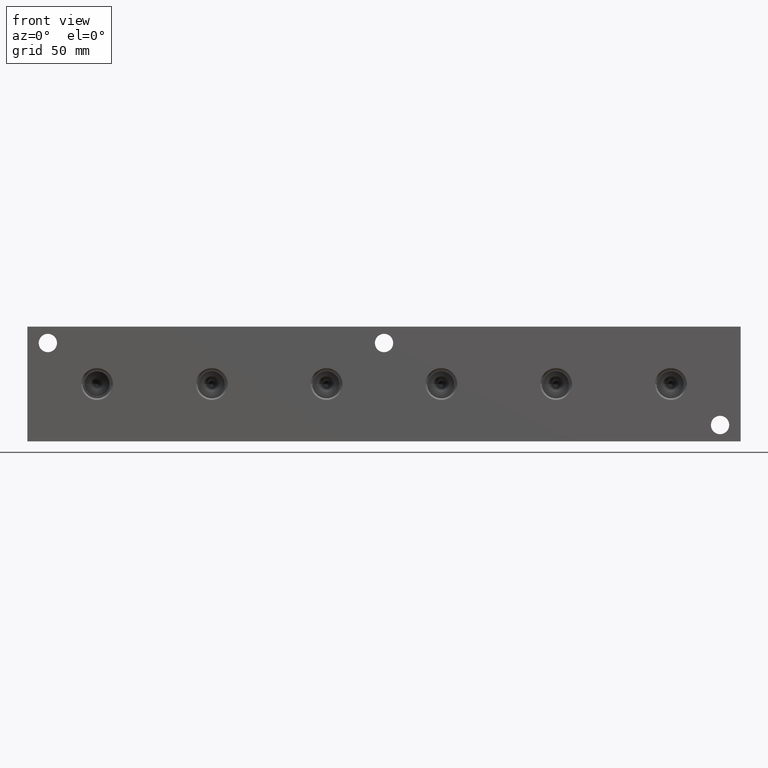
[diagram: clean part render]
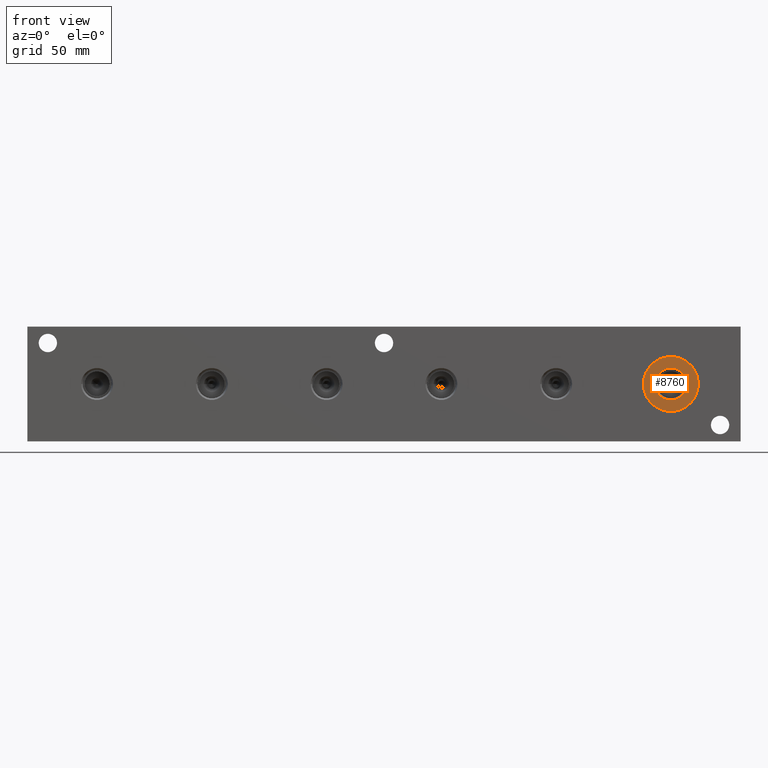
[diagram: same view with one face highlighted and labeled with its STEP entity id]
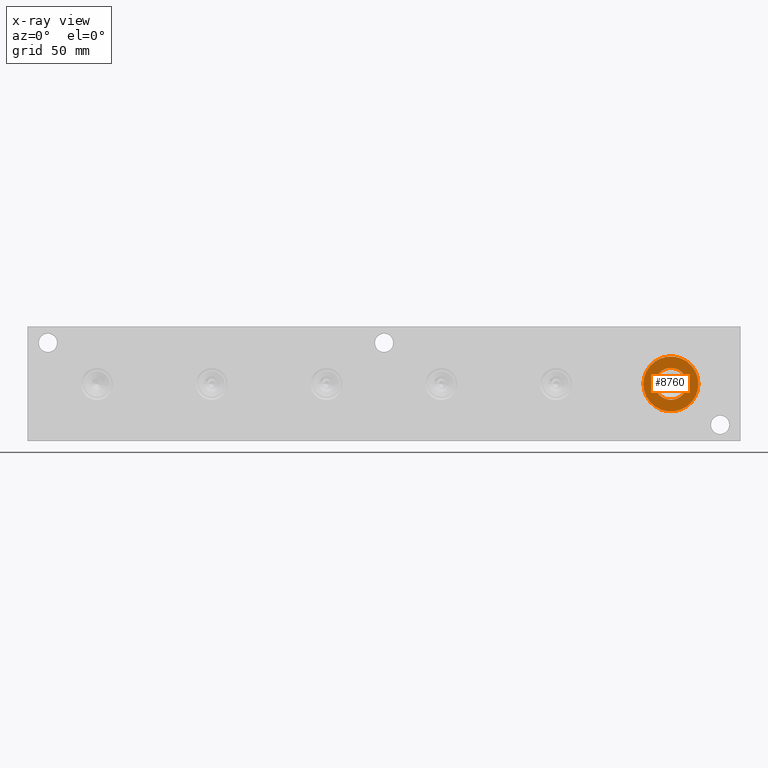
[diagram: x-ray of the same camera — body ghosted, the highlighted face saturated]
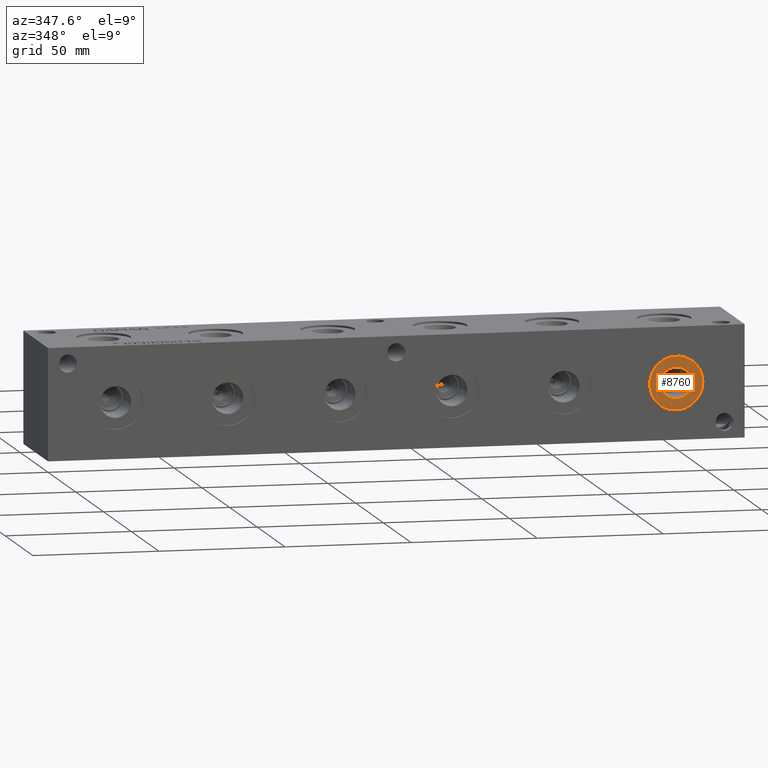
[diagram: same view with one face highlighted and labeled with its STEP entity id]
A machine part, front view. The second image highlights one B-rep face of the part: STEP entity #8760.
The next image is the same camera in x-ray: the body ghosted, the highlighted face saturated — about 0% of this face is hidden behind the body in this view.
A second angle (auxiliary view) of the same face is appended — the face is thin or edge-on in the first view.
In plain terms, the highlighted planar face has unit normal (0, -1, 0).
Its self-contained STEP definition (entity closure, byte-faithful):
#279=CIRCLE('',#9257,10.6426);
#280=CIRCLE('',#9258,10.6426);
#281=CIRCLE('',#9259,6.1976);
#433=FACE_BOUND('',#1690,.T.);
#1178=FACE_OUTER_BOUND('',#1689,.T.);
#1689=EDGE_LOOP('',(#7390,#7391));
#1690=EDGE_LOOP('',(#7392));
#4022=VERTEX_POINT('',#15033);
#4023=VERTEX_POINT('',#15034);
#4024=VERTEX_POINT('',#15037);
#5184=EDGE_CURVE('',#4022,#4023,#279,.T.);
#5185=EDGE_CURVE('',#4023,#4022,#280,.T.);
#5186=EDGE_CURVE('',#4024,#4024,#281,.T.);
#7390=ORIENTED_EDGE('',*,*,#5184,.T.);
#7391=ORIENTED_EDGE('',*,*,#5185,.T.);
#7392=ORIENTED_EDGE('',*,*,#5186,.F.);
#8064=PLANE('',#9256);
#8760=ADVANCED_FACE('',(#1178,#433),#8064,.T.);
#9256=AXIS2_PLACEMENT_3D('',#15032,#10925,#10926);
#9257=AXIS2_PLACEMENT_3D('',#15035,#10927,#10928);
#9258=AXIS2_PLACEMENT_3D('',#15036,#10929,#10930);
#9259=AXIS2_PLACEMENT_3D('',#15038,#10931,#10932);
#10925=DIRECTION('center_axis',(0.,-1.,0.));
#10926=DIRECTION('ref_axis',(1.,0.,0.));
#10927=DIRECTION('center_axis',(0.,-1.,0.));
#10928=DIRECTION('ref_axis',(1.,0.,0.));
#10929=DIRECTION('center_axis',(0.,-1.,0.));
#10930=DIRECTION('ref_axis',(1.,0.,0.));
#10931=DIRECTION('center_axis',(0.,-1.,0.));
#10932=DIRECTION('ref_axis',(1.,0.,0.));
#15032=CARTESIAN_POINT('Origin',(249.2248,0.7874,22.225));
#15033=CARTESIAN_POINT('',(259.8674,0.7874,22.225));
#15034=CARTESIAN_POINT('',(238.5822,0.7874,22.225));
#15035=CARTESIAN_POINT('Origin',(249.2248,0.7874,22.225));
#15036=CARTESIAN_POINT('Origin',(249.2248,0.7874,22.225));
#15037=CARTESIAN_POINT('',(243.0272,0.7874,22.225));
#15038=CARTESIAN_POINT('Origin',(249.2248,0.7874,22.225));